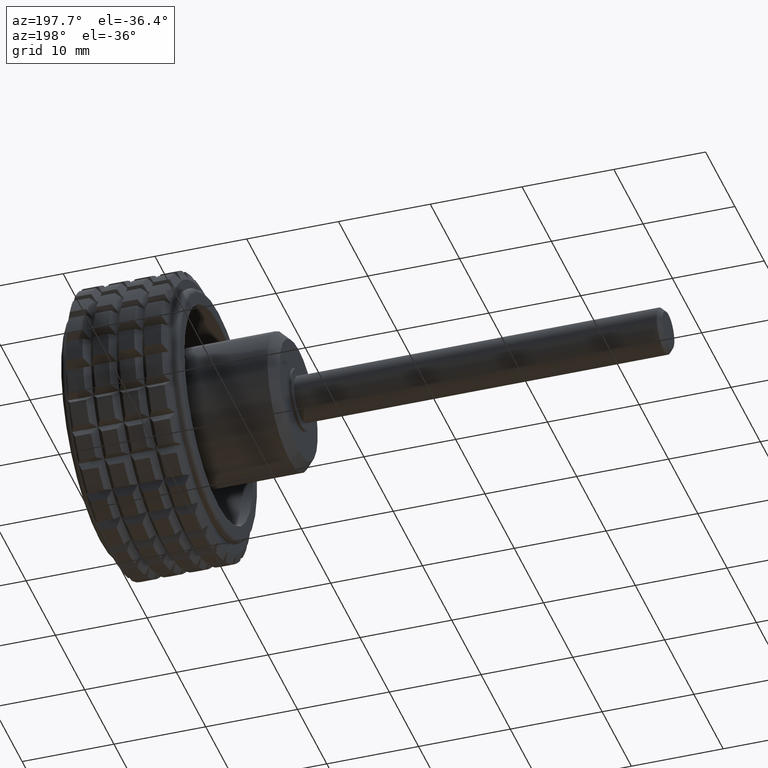
[diagram: clean part render]
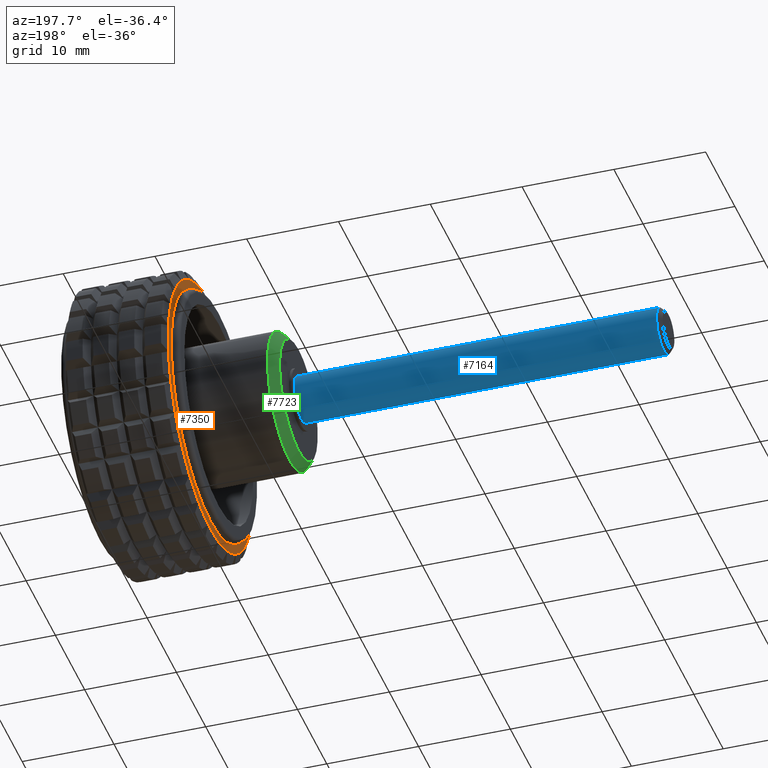
[diagram: same view with three faces highlighted in distinct colors, each labeled with its STEP entity id]
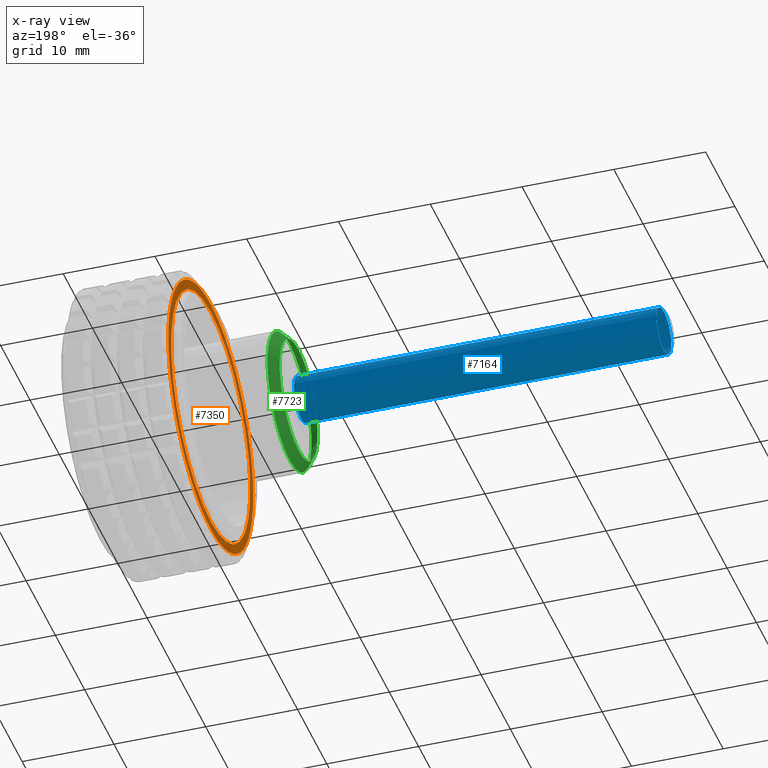
[diagram: x-ray of the same camera — body ghosted, the three highlighted faces saturated]
A machine part, auxiliary view with three faces highlighted in distinct colors.
The next image is the same camera in x-ray (body ghosted, the three faces saturated) — at least one of them is partly hidden behind the body in this view.
Their STEP definitions:

[orange] entity #7350 — the highlighted planar face has unit normal (1, 0, 0).
#1222=PLANE('',#8044);
#1441=FACE_BOUND('',#2211,.T.);
#1644=FACE_OUTER_BOUND('',#2210,.T.);
#2210=EDGE_LOOP('',(#5446,#5447,#5448,#5449,#5450,#5451,#5452,#5453,#5454,
#5455,#5456,#5457,#5458,#5459,#5460,#5461,#5462,#5463,#5464,#5465,#5466,
#5467,#5468,#5469,#5470,#5471,#5472));
#2211=EDGE_LOOP('',(#5473));
#2709=CIRCLE('',#7996,14.5);
#2722=CIRCLE('',#8025,14.5);
#2727=CIRCLE('',#8038,14.5);
#2728=CIRCLE('',#8040,14.5);
#2729=CIRCLE('',#8042,14.5);
#2731=CIRCLE('',#8045,14.5);
#2732=CIRCLE('',#8046,14.5);
#2733=CIRCLE('',#8047,14.5);
#2734=CIRCLE('',#8048,14.5);
#2735=CIRCLE('',#8049,14.5);
#2736=CIRCLE('',#8050,14.5);
#2737=CIRCLE('',#8051,14.5);
#2738=CIRCLE('',#8052,14.5);
#2739=CIRCLE('',#8053,14.5);
#2740=CIRCLE('',#8054,14.5);
#2741=CIRCLE('',#8055,14.5);
#2742=CIRCLE('',#8056,14.5);
#2743=CIRCLE('',#8057,14.5);
#2744=CIRCLE('',#8058,14.5);
#2745=CIRCLE('',#8059,14.5);
#2746=CIRCLE('',#8060,14.5);
#2747=CIRCLE('',#8061,14.5);
#2748=CIRCLE('',#8062,14.5);
#2749=CIRCLE('',#8063,14.5);
#2750=CIRCLE('',#8064,14.5);
#2751=CIRCLE('',#8065,14.5);
#2752=CIRCLE('',#8066,14.5);
#2753=CIRCLE('',#8067,13.5);
#3019=VERTEX_POINT('',#11066);
#3043=VERTEX_POINT('',#11182);
#3050=VERTEX_POINT('',#11229);
#3064=VERTEX_POINT('',#11291);
#3076=VERTEX_POINT('',#11351);
#3088=VERTEX_POINT('',#11402);
#3095=VERTEX_POINT('',#11434);
#3107=VERTEX_POINT('',#11483);
#3123=VERTEX_POINT('',#11556);
#3133=VERTEX_POINT('',#11600);
#3146=VERTEX_POINT('',#11659);
#3161=VERTEX_POINT('',#11725);
#3172=VERTEX_POINT('',#11780);
#3185=VERTEX_POINT('',#11836);
#3198=VERTEX_POINT('',#11895);
#3213=VERTEX_POINT('',#11961);
#3224=VERTEX_POINT('',#12013);
#3237=VERTEX_POINT('',#12072);
#3252=VERTEX_POINT('',#12138);
#3263=VERTEX_POINT('',#12190);
#3276=VERTEX_POINT('',#12249);
#3287=VERTEX_POINT('',#12300);
#3298=VERTEX_POINT('',#12352);
#3311=VERTEX_POINT('',#12411);
#3323=VERTEX_POINT('',#12469);
#3336=VERTEX_POINT('',#12541);
#3365=VERTEX_POINT('',#12746);
#3378=VERTEX_POINT('',#12845);
#4087=EDGE_CURVE('',#3064,#3076,#2709,.T.);
#4126=EDGE_CURVE('',#3050,#3019,#2722,.T.);
#4151=EDGE_CURVE('',#3311,#3365,#2727,.T.);
#4154=EDGE_CURVE('',#3095,#3064,#2728,.T.);
#4155=EDGE_CURVE('',#3019,#3043,#2729,.T.);
#4158=EDGE_CURVE('',#3043,#3323,#2731,.T.);
#4159=EDGE_CURVE('',#3336,#3050,#2732,.T.);
#4160=EDGE_CURVE('',#3365,#3336,#2733,.T.);
#4161=EDGE_CURVE('',#3298,#3311,#2734,.T.);
#4162=EDGE_CURVE('',#3276,#3298,#2735,.T.);
#4163=EDGE_CURVE('',#3263,#3276,#2736,.T.);
#4164=EDGE_CURVE('',#3237,#3263,#2737,.T.);
#4165=EDGE_CURVE('',#3224,#3237,#2738,.T.);
#4166=EDGE_CURVE('',#3198,#3224,#2739,.T.);
#4167=EDGE_CURVE('',#3185,#3198,#2740,.T.);
#4168=EDGE_CURVE('',#3172,#3185,#2741,.T.);
#4169=EDGE_CURVE('',#3146,#3172,#2742,.T.);
#4170=EDGE_CURVE('',#3133,#3146,#2743,.T.);
#4171=EDGE_CURVE('',#3107,#3133,#2744,.T.);
#4172=EDGE_CURVE('',#3088,#3107,#2745,.T.);
#4173=EDGE_CURVE('',#3076,#3088,#2746,.T.);
#4174=EDGE_CURVE('',#3123,#3095,#2747,.T.);
#4175=EDGE_CURVE('',#3161,#3123,#2748,.T.);
#4176=EDGE_CURVE('',#3213,#3161,#2749,.T.);
#4177=EDGE_CURVE('',#3252,#3213,#2750,.T.);
#4178=EDGE_CURVE('',#3287,#3252,#2751,.T.);
#4179=EDGE_CURVE('',#3323,#3287,#2752,.T.);
#4180=EDGE_CURVE('',#3378,#3378,#2753,.T.);
#5446=ORIENTED_EDGE('',*,*,#4158,.F.);
#5447=ORIENTED_EDGE('',*,*,#4155,.F.);
#5448=ORIENTED_EDGE('',*,*,#4126,.F.);
#5449=ORIENTED_EDGE('',*,*,#4159,.F.);
#5450=ORIENTED_EDGE('',*,*,#4160,.F.);
#5451=ORIENTED_EDGE('',*,*,#4151,.F.);
#5452=ORIENTED_EDGE('',*,*,#4161,.F.);
#5453=ORIENTED_EDGE('',*,*,#4162,.F.);
#5454=ORIENTED_EDGE('',*,*,#4163,.F.);
#5455=ORIENTED_EDGE('',*,*,#4164,.F.);
#5456=ORIENTED_EDGE('',*,*,#4165,.F.);
#5457=ORIENTED_EDGE('',*,*,#4166,.F.);
#5458=ORIENTED_EDGE('',*,*,#4167,.F.);
#5459=ORIENTED_EDGE('',*,*,#4168,.F.);
#5460=ORIENTED_EDGE('',*,*,#4169,.F.);
#5461=ORIENTED_EDGE('',*,*,#4170,.F.);
#5462=ORIENTED_EDGE('',*,*,#4171,.F.);
#5463=ORIENTED_EDGE('',*,*,#4172,.F.);
#5464=ORIENTED_EDGE('',*,*,#4173,.F.);
#5465=ORIENTED_EDGE('',*,*,#4087,.F.);
#5466=ORIENTED_EDGE('',*,*,#4154,.F.);
#5467=ORIENTED_EDGE('',*,*,#4174,.F.);
#5468=ORIENTED_EDGE('',*,*,#4175,.F.);
#5469=ORIENTED_EDGE('',*,*,#4176,.F.);
#5470=ORIENTED_EDGE('',*,*,#4177,.F.);
#5471=ORIENTED_EDGE('',*,*,#4178,.F.);
#5472=ORIENTED_EDGE('',*,*,#4179,.F.);
#5473=ORIENTED_EDGE('',*,*,#4180,.T.);
#7350=ADVANCED_FACE('',(#1644,#1441),#1222,.F.);
#7996=AXIS2_PLACEMENT_3D('',#12612,#9387,#9388);
#8025=AXIS2_PLACEMENT_3D('',#12720,#9459,#9460);
#8038=AXIS2_PLACEMENT_3D('',#12803,#9494,#9495);
#8040=AXIS2_PLACEMENT_3D('',#12813,#9498,#9499);
#8042=AXIS2_PLACEMENT_3D('',#12815,#9502,#9503);
#8044=AXIS2_PLACEMENT_3D('',#12822,#9506,#9507);
#8045=AXIS2_PLACEMENT_3D('',#12823,#9508,#9509);
#8046=AXIS2_PLACEMENT_3D('',#12824,#9510,#9511);
#8047=AXIS2_PLACEMENT_3D('',#12825,#9512,#9513);
#8048=AXIS2_PLACEMENT_3D('',#12826,#9514,#9515);
#8049=AXIS2_PLACEMENT_3D('',#12827,#9516,#9517);
#8050=AXIS2_PLACEMENT_3D('',#12828,#9518,#9519);
#8051=AXIS2_PLACEMENT_3D('',#12829,#9520,#9521);
#8052=AXIS2_PLACEMENT_3D('',#12830,#9522,#9523);
#8053=AXIS2_PLACEMENT_3D('',#12831,#9524,#9525);
#8054=AXIS2_PLACEMENT_3D('',#12832,#9526,#9527);
#8055=AXIS2_PLACEMENT_3D('',#12833,#9528,#9529);
#8056=AXIS2_PLACEMENT_3D('',#12834,#9530,#9531);
#8057=AXIS2_PLACEMENT_3D('',#12835,#9532,#9533);
#8058=AXIS2_PLACEMENT_3D('',#12836,#9534,#9535);
#8059=AXIS2_PLACEMENT_3D('',#12837,#9536,#9537);
#8060=AXIS2_PLACEMENT_3D('',#12838,#9538,#9539);
#8061=AXIS2_PLACEMENT_3D('',#12839,#9540,#9541);
#8062=AXIS2_PLACEMENT_3D('',#12840,#9542,#9543);
#8063=AXIS2_PLACEMENT_3D('',#12841,#9544,#9545);
#8064=AXIS2_PLACEMENT_3D('',#12842,#9546,#9547);
#8065=AXIS2_PLACEMENT_3D('',#12843,#9548,#9549);
#8066=AXIS2_PLACEMENT_3D('',#12844,#9550,#9551);
#8067=AXIS2_PLACEMENT_3D('',#12846,#9552,#9553);
#9387=DIRECTION('center_axis',(1.,0.,0.));
#9388=DIRECTION('ref_axis',(0.,0.,-1.));
#9459=DIRECTION('center_axis',(1.,0.,0.));
#9460=DIRECTION('ref_axis',(0.,0.,-1.));
#9494=DIRECTION('center_axis',(1.,0.,0.));
#9495=DIRECTION('ref_axis',(0.,0.,-1.));
#9498=DIRECTION('center_axis',(1.,0.,0.));
#9499=DIRECTION('ref_axis',(0.,0.,-1.));
#9502=DIRECTION('center_axis',(1.,0.,0.));
#9503=DIRECTION('ref_axis',(0.,0.,-1.));
#9506=DIRECTION('center_axis',(1.,0.,0.));
#9507=DIRECTION('ref_axis',(0.,0.,-1.));
#9508=DIRECTION('center_axis',(1.,0.,0.));
#9509=DIRECTION('ref_axis',(0.,0.,-1.));
#9510=DIRECTION('center_axis',(1.,0.,0.));
#9511=DIRECTION('ref_axis',(0.,0.,-1.));
#9512=DIRECTION('center_axis',(1.,0.,0.));
#9513=DIRECTION('ref_axis',(0.,0.,-1.));
#9514=DIRECTION('center_axis',(1.,0.,0.));
#9515=DIRECTION('ref_axis',(0.,0.,-1.));
#9516=DIRECTION('center_axis',(1.,0.,0.));
#9517=DIRECTION('ref_axis',(0.,0.,-1.));
#9518=DIRECTION('center_axis',(1.,0.,0.));
#9519=DIRECTION('ref_axis',(0.,0.,-1.));
#9520=DIRECTION('center_axis',(1.,0.,0.));
#9521=DIRECTION('ref_axis',(0.,0.,-1.));
#9522=DIRECTION('center_axis',(1.,0.,0.));
#9523=DIRECTION('ref_axis',(0.,0.,-1.));
#9524=DIRECTION('center_axis',(1.,0.,0.));
#9525=DIRECTION('ref_axis',(0.,0.,-1.));
#9526=DIRECTION('center_axis',(1.,0.,0.));
#9527=DIRECTION('ref_axis',(0.,0.,-1.));
#9528=DIRECTION('center_axis',(1.,0.,0.));
#9529=DIRECTION('ref_axis',(0.,0.,-1.));
#9530=DIRECTION('center_axis',(1.,0.,0.));
#9531=DIRECTION('ref_axis',(0.,0.,-1.));
#9532=DIRECTION('center_axis',(1.,0.,0.));
#9533=DIRECTION('ref_axis',(0.,0.,-1.));
#9534=DIRECTION('center_axis',(1.,0.,0.));
#9535=DIRECTION('ref_axis',(0.,0.,-1.));
#9536=DIRECTION('center_axis',(1.,0.,0.));
#9537=DIRECTION('ref_axis',(0.,0.,-1.));
#9538=DIRECTION('center_axis',(1.,0.,0.));
#9539=DIRECTION('ref_axis',(0.,0.,-1.));
#9540=DIRECTION('center_axis',(1.,0.,0.));
#9541=DIRECTION('ref_axis',(0.,0.,-1.));
#9542=DIRECTION('center_axis',(1.,0.,0.));
#9543=DIRECTION('ref_axis',(0.,0.,-1.));
#9544=DIRECTION('center_axis',(1.,0.,0.));
#9545=DIRECTION('ref_axis',(0.,0.,-1.));
#9546=DIRECTION('center_axis',(1.,0.,0.));
#9547=DIRECTION('ref_axis',(0.,0.,-1.));
#9548=DIRECTION('center_axis',(1.,0.,0.));
#9549=DIRECTION('ref_axis',(0.,0.,-1.));
#9550=DIRECTION('center_axis',(1.,0.,0.));
#9551=DIRECTION('ref_axis',(0.,0.,-1.));
#9552=DIRECTION('center_axis',(1.,0.,0.));
#9553=DIRECTION('ref_axis',(0.,0.,-1.));
#11066=CARTESIAN_POINT('',(19.88,13.6255430013957,-4.95929207822219));
#11182=CARTESIAN_POINT('',(19.88,14.4019561872582,-1.68334725481584));
#11229=CARTESIAN_POINT('',(19.88,12.1145732654876,-7.96788018202668));
#11291=CARTESIAN_POINT('',(19.88,-2.51789857617049,14.279712418677));
#11351=CARTESIAN_POINT('',(19.88,-5.74315660756777,13.314133549764));
#11402=CARTESIAN_POINT('',(19.88,-8.6587995796904,11.6307862949481));
#11434=CARTESIAN_POINT('',(19.88,0.843100019201899,14.4754682949334));
#11483=CARTESIAN_POINT('',(19.88,-11.1076444252252,9.32042034045482));
#11556=CARTESIAN_POINT('',(19.88,4.15864687431081,13.8908479285746));
#11600=CARTESIAN_POINT('',(19.88,-12.9576732846895,6.5075881129067));
#11659=CARTESIAN_POINT('',(19.88,-14.1091506234074,3.34393012576538));
#11725=CARTESIAN_POINT('',(19.88,7.25,12.5573683548744));
#11780=CARTESIAN_POINT('',(19.88,-14.5,4.33680868994202E-16));
#11836=CARTESIAN_POINT('',(19.88,-14.1091506234074,-3.34393012576538));
#11895=CARTESIAN_POINT('',(19.88,-12.9576732846895,-6.5075881129067));
#11961=CARTESIAN_POINT('',(19.88,9.95050374909663,10.5469178028092));
#12013=CARTESIAN_POINT('',(19.88,-11.1076444252252,-9.32042034045481));
#12072=CARTESIAN_POINT('',(19.88,-8.65879957969039,-11.6307862949481));
#12138=CARTESIAN_POINT('',(19.88,12.1145732654876,7.96788018202669));
#12190=CARTESIAN_POINT('',(19.88,-5.74315660756777,-13.314133549764));
#12249=CARTESIAN_POINT('',(19.88,-2.51789857617049,-14.279712418677));
#12300=CARTESIAN_POINT('',(19.88,13.6255430013957,4.9592920782222));
#12352=CARTESIAN_POINT('',(19.88,0.843100019201898,-14.4754682949334));
#12411=CARTESIAN_POINT('',(19.88,4.1586468743108,-13.8908479285746));
#12469=CARTESIAN_POINT('',(19.88,14.4019561872582,1.68334725481584));
#12541=CARTESIAN_POINT('',(19.88,9.95050374909663,-10.5469178028092));
#12612=CARTESIAN_POINT('Origin',(19.88,0.,0.));
#12720=CARTESIAN_POINT('Origin',(19.88,0.,0.));
#12746=CARTESIAN_POINT('',(19.88,7.24999999999999,-12.5573683548744));
#12803=CARTESIAN_POINT('Origin',(19.88,0.,0.));
#12813=CARTESIAN_POINT('Origin',(19.88,0.,0.));
#12815=CARTESIAN_POINT('Origin',(19.88,0.,0.));
#12822=CARTESIAN_POINT('Origin',(19.88,13.5,0.));
#12823=CARTESIAN_POINT('Origin',(19.88,0.,0.));
#12824=CARTESIAN_POINT('Origin',(19.88,0.,0.));
#12825=CARTESIAN_POINT('Origin',(19.88,0.,0.));
#12826=CARTESIAN_POINT('Origin',(19.88,0.,0.));
#12827=CARTESIAN_POINT('Origin',(19.88,0.,0.));
#12828=CARTESIAN_POINT('Origin',(19.88,0.,0.));
#12829=CARTESIAN_POINT('Origin',(19.88,0.,0.));
#12830=CARTESIAN_POINT('Origin',(19.88,0.,0.));
#12831=CARTESIAN_POINT('Origin',(19.88,0.,0.));
#12832=CARTESIAN_POINT('Origin',(19.88,0.,0.));
#12833=CARTESIAN_POINT('Origin',(19.88,0.,0.));
#12834=CARTESIAN_POINT('Origin',(19.88,0.,0.));
#12835=CARTESIAN_POINT('Origin',(19.88,0.,0.));
#12836=CARTESIAN_POINT('Origin',(19.88,0.,0.));
#12837=CARTESIAN_POINT('Origin',(19.88,0.,0.));
#12838=CARTESIAN_POINT('Origin',(19.88,0.,0.));
#12839=CARTESIAN_POINT('Origin',(19.88,0.,0.));
#12840=CARTESIAN_POINT('Origin',(19.88,0.,0.));
#12841=CARTESIAN_POINT('Origin',(19.88,0.,0.));
#12842=CARTESIAN_POINT('Origin',(19.88,0.,0.));
#12843=CARTESIAN_POINT('Origin',(19.88,0.,0.));
#12844=CARTESIAN_POINT('Origin',(19.88,0.,0.));
#12845=CARTESIAN_POINT('',(19.88,0.,-13.5));
#12846=CARTESIAN_POINT('Origin',(19.88,0.,0.));

[blue] entity #7164 — the highlighted cylindrical surface (bore or boss wall) has radius 2.5 mm, axis along (-1, 0, 0).
#1323=CYLINDRICAL_SURFACE('',#7730,2.5);
#1438=FACE_BOUND('',#2022,.T.);
#1458=FACE_OUTER_BOUND('',#2021,.T.);
#2021=EDGE_LOOP('',(#4688));
#2022=EDGE_LOOP('',(#4689));
#2602=CIRCLE('',#7729,2.5);
#2603=CIRCLE('',#7731,2.5);
#2973=VERTEX_POINT('',#10856);
#2974=VERTEX_POINT('',#10859);
#3560=EDGE_CURVE('',#2973,#2973,#2602,.T.);
#3561=EDGE_CURVE('',#2974,#2974,#2603,.F.);
#4688=ORIENTED_EDGE('',*,*,#3561,.T.);
#4689=ORIENTED_EDGE('',*,*,#3560,.F.);
#7164=ADVANCED_FACE('',(#1458,#1438),#1323,.T.);
#7729=AXIS2_PLACEMENT_3D('',#10857,#8666,#8667);
#7730=AXIS2_PLACEMENT_3D('',#10858,#8668,#8669);
#7731=AXIS2_PLACEMENT_3D('',#10860,#8670,#8671);
#8666=DIRECTION('center_axis',(-1.,0.,0.));
#8667=DIRECTION('ref_axis',(0.,0.,-1.));
#8668=DIRECTION('center_axis',(-1.,0.,0.));
#8669=DIRECTION('ref_axis',(0.,0.,-1.));
#8670=DIRECTION('center_axis',(1.,0.,0.));
#8671=DIRECTION('ref_axis',(0.,0.,-1.));
#10856=CARTESIAN_POINT('',(-29.5,3.06161699786838E-16,2.5));
#10857=CARTESIAN_POINT('Origin',(-29.5,0.,0.));
#10858=CARTESIAN_POINT('Origin',(-10.,0.,0.));
#10859=CARTESIAN_POINT('',(10.,0.,-2.5));
#10860=CARTESIAN_POINT('Origin',(10.,0.,0.));

[green] entity #7723 — the highlighted conical surface has half-angle 45 deg.
#1455=FACE_BOUND('',#2598,.T.);
#2017=FACE_OUTER_BOUND('',#2597,.T.);
#2597=EDGE_LOOP('',(#6936));
#2598=EDGE_LOOP('',(#6937));
#2970=CIRCLE('',#8656,7.5);
#2971=CIRCLE('',#8658,6.5);
#3557=VERTEX_POINT('',#14419);
#3558=VERTEX_POINT('',#14422);
#4684=EDGE_CURVE('',#3557,#3557,#2970,.T.);
#4685=EDGE_CURVE('',#3558,#3558,#2971,.T.);
#6936=ORIENTED_EDGE('',*,*,#4684,.F.);
#6937=ORIENTED_EDGE('',*,*,#4685,.T.);
#7158=CONICAL_SURFACE('',#8657,6.5,45.0000000000001);
#7723=ADVANCED_FACE('',(#2017,#1455),#7158,.T.);
#8656=AXIS2_PLACEMENT_3D('',#14420,#10844,#10845);
#8657=AXIS2_PLACEMENT_3D('',#14421,#10846,#10847);
#8658=AXIS2_PLACEMENT_3D('',#14423,#10848,#10849);
#10844=DIRECTION('center_axis',(1.,0.,0.));
#10845=DIRECTION('ref_axis',(0.,0.,-1.));
#10846=DIRECTION('center_axis',(1.,0.,0.));
#10847=DIRECTION('ref_axis',(0.,0.,-1.));
#10848=DIRECTION('center_axis',(1.,0.,0.));
#10849=DIRECTION('ref_axis',(0.,0.,-1.));
#14419=CARTESIAN_POINT('',(11.3,0.,-7.5));
#14420=CARTESIAN_POINT('Origin',(11.3,0.,0.));
#14421=CARTESIAN_POINT('Origin',(10.3,0.,0.));
#14422=CARTESIAN_POINT('',(10.3,0.,-6.5));
#14423=CARTESIAN_POINT('Origin',(10.3,0.,0.));